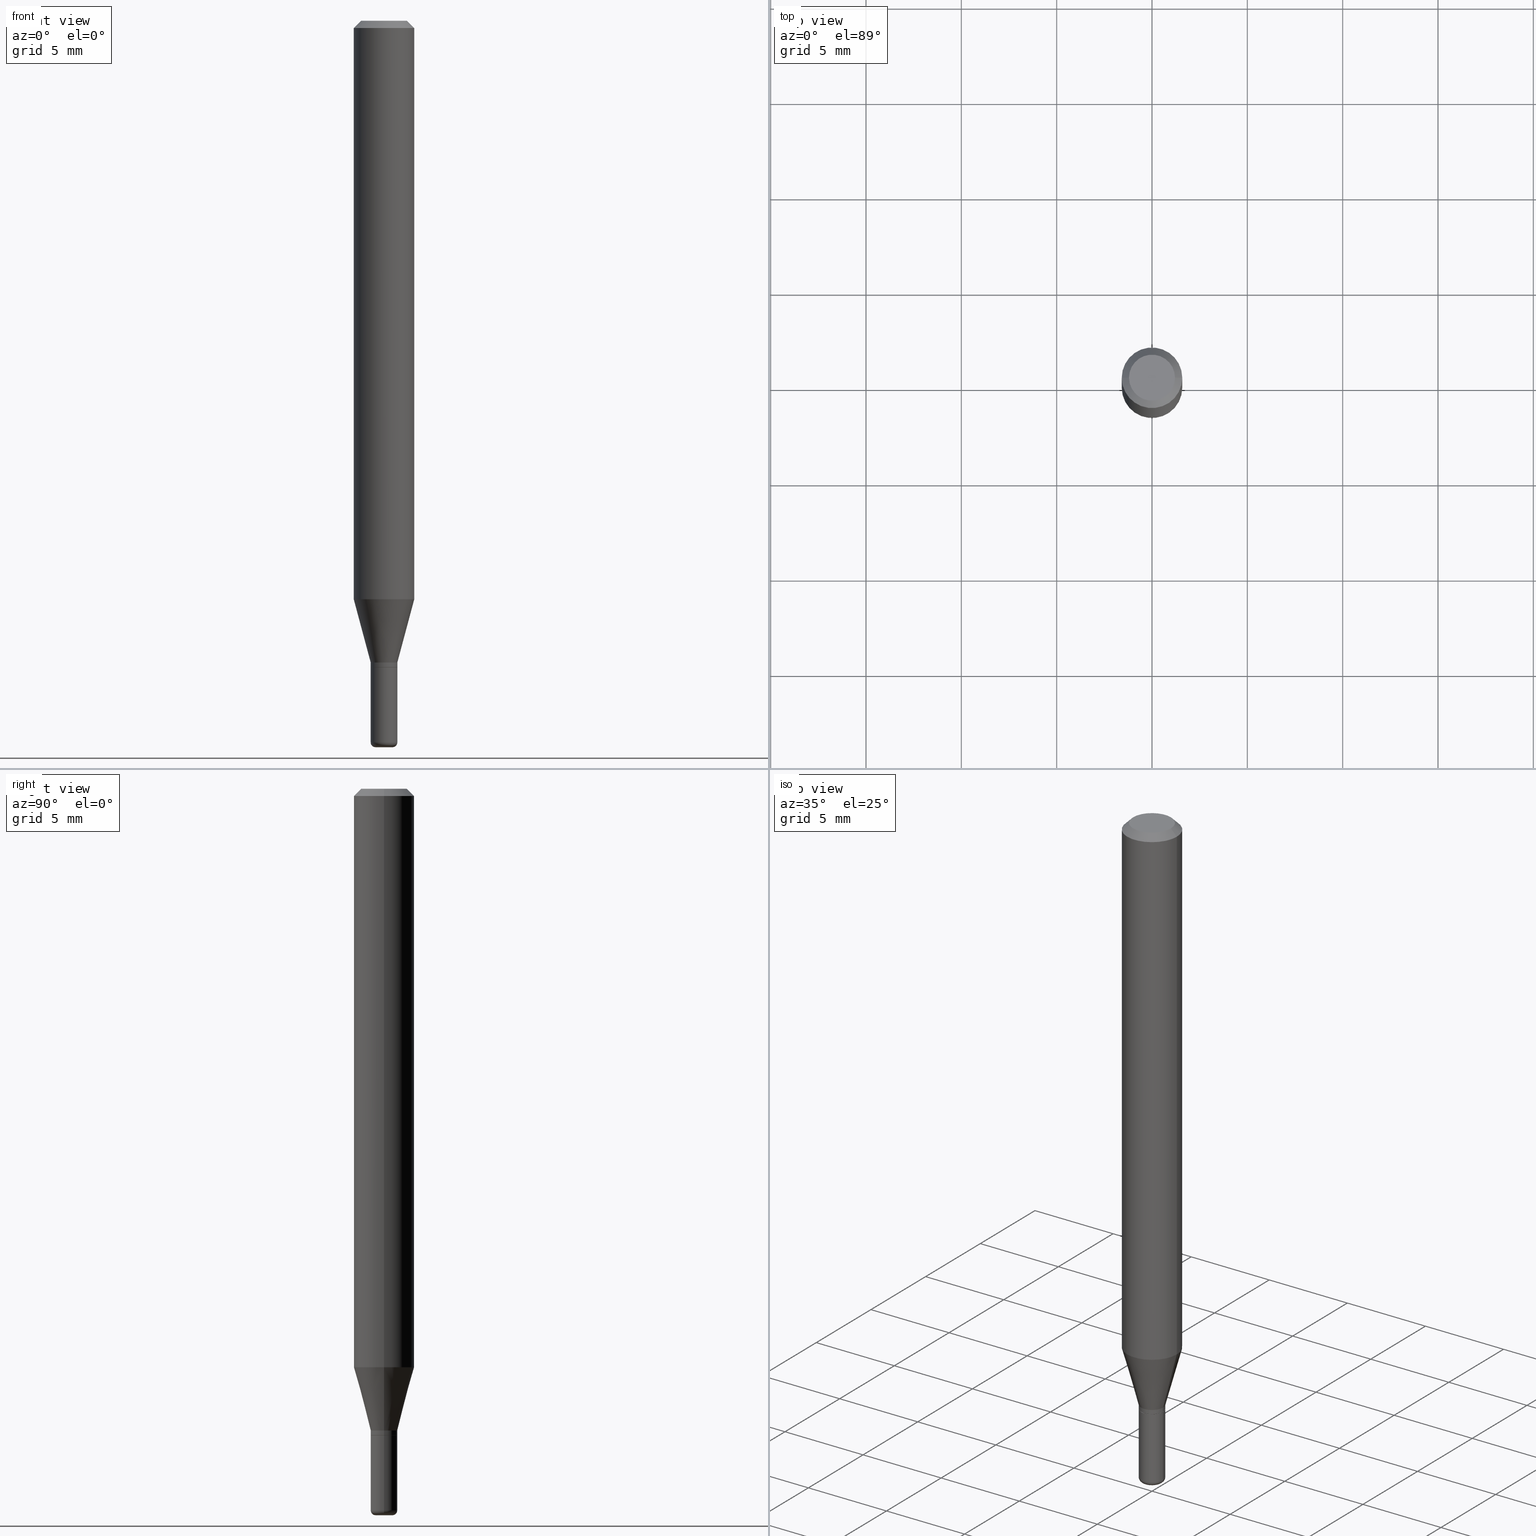
[diagram: canonical four-view strip — front | top / right | iso, engineering-drawing reading convention]
A machine part, canonical four-view strip (front | top / right | iso — engineering-drawing reading convention). The complete STEP part file that produces these views, byte-faithful:
ISO-10303-21;
HEADER;
FILE_DESCRIPTION (( 'STEP AP203' ),
    '1' );
FILE_NAME ('08671.STEP',
    '2024-02-29T20:17:09',
    ( '' ),
    ( '' ),
    'SwSTEP 2.0',
    'SolidWorks 2023',
    '' );
FILE_SCHEMA (( 'CONFIG_CONTROL_DESIGN' ));
ENDSEC;

DATA;
#1 = ORIENTED_EDGE ( 'NONE', *, *, #177, .T. ) ;
#2 = AXIS2_PLACEMENT_3D ( 'NONE', #332, #20, #141 ) ;
#3 = CONICAL_SURFACE ( 'NONE', #286, 0.02699999999999996847, 0.7853981633975507526 ) ;
#4 = DIRECTION ( 'NONE',  ( -1.000000000000000000, 6.982962677686265922E-15, -4.876176775795935793E-29 ) ) ;
#5 = APPROVAL ( #401, 'UNSPECIFIED' ) ;
#6 = DIRECTION ( 'NONE',  ( 1.000000000000000000, -6.982962677686265922E-15, 4.876176775795935793E-29 ) ) ;
#7 = LINE ( 'NONE', #88, #168 ) ;
#8 = AXIS2_PLACEMENT_3D ( 'NONE', #486, #290, #136 ) ;
#9 = EDGE_CURVE ( 'NONE', #91, #51, #457, .T. ) ;
#10 = LOCAL_TIME ( 15, 17, 9.000000000000000000, #236 ) ;
#11 = ORIENTED_EDGE ( 'NONE', *, *, #24, .T. ) ;
#12 = AXIS2_PLACEMENT_3D ( 'NONE', #255, #338, #347 ) ;
#13 = AXIS2_PLACEMENT_3D ( 'NONE', #246, #173, #320 ) ;
#14 = APPROVAL_ROLE ( '' ) ;
#15 = CARTESIAN_POINT ( 'NONE',  ( 3.643748521215853910E-29, -5.202307194876288105E-15, -1.490000000000000213 ) ) ;
#16 = ADVANCED_BREP_SHAPE_REPRESENTATION ( '08671', ( #166, #169, #13 ), #458 ) ;
#17 = EDGE_LOOP ( 'NONE', ( #243, #474, #64, #326 ) ) ;
#18 = EDGE_CURVE ( 'NONE', #402, #51, #226, .T. ) ;
#19 = PERSON_AND_ORGANIZATION_ROLE ( 'creator' ) ;
#20 = DIRECTION ( 'NONE',  ( -2.445468806185136597E-29, 3.491481338843145583E-15, 1.000000000000000000 ) ) ;
#21 = DATE_AND_TIME ( #384, #98 ) ;
#22 = EDGE_CURVE ( 'NONE', #196, #301, #233, .T. ) ;
#23 = CIRCLE ( 'NONE', #115, 0.01750000000000000167 ) ;
#24 = EDGE_CURVE ( 'NONE', #402, #276, #514, .T. ) ;
#25 = DIRECTION ( 'NONE',  ( 1.000000000000000000, -6.982962677686266711E-15, 0.000000000000000000 ) ) ;
#26 = DIRECTION ( 'NONE',  ( -2.438088387897960049E-29, 3.491481338843145188E-15, 1.000000000000000000 ) ) ;
#27 = VERTEX_POINT ( 'NONE', #421 ) ;
#28 = ORIENTED_EDGE ( 'NONE', *, *, #44, .F. ) ;
#29 = EDGE_CURVE ( 'NONE', #276, #402, #23, .T. ) ;
#30 = DIRECTION ( 'NONE',  ( 1.000000000000000000, -6.982962677686254878E-15, 0.000000000000000000 ) ) ;
#31 = AXIS2_PLACEMENT_3D ( 'NONE', #311, #364, #394 ) ;
#32 = SECURITY_CLASSIFICATION_LEVEL ( 'unclassified' ) ;
#33 = CARTESIAN_POINT ( 'NONE',  ( 0.02749999999999994463, -5.394338668512659809E-15, -1.490000000000000213 ) ) ;
#34 = ORIENTED_EDGE ( 'NONE', *, *, #191, .F. ) ;
#35 = CALENDAR_DATE ( 2024, 29, 2 ) ;
#36 = DIRECTION ( 'NONE',  ( -2.445468806185136597E-29, 3.491481338843145583E-15, 1.000000000000000000 ) ) ;
#37 = EDGE_LOOP ( 'NONE', ( #267, #70 ) ) ;
#38 = DIRECTION ( 'NONE',  ( 1.000000000000000000, -6.982962677686279332E-15, 0.000000000000000000 ) ) ;
#39 = DIRECTION ( 'NONE',  ( -2.445468806185136597E-29, 3.491481338843145583E-15, 1.000000000000000000 ) ) ;
#40 = ORIENTED_EDGE ( 'NONE', *, *, #9, .T. ) ;
#41 = PLANE ( 'NONE',  #268 ) ;
#42 = AXIS2_PLACEMENT_3D ( 'NONE', #388, #518, #204 ) ;
#43 = SECURITY_CLASSIFICATION ( '', '', #32 ) ;
#44 = EDGE_CURVE ( 'NONE', #91, #27, #112, .T. ) ;
#45 = DIRECTION ( 'NONE',  ( -2.445468806185136597E-29, 3.491481338843145583E-15, 1.000000000000000000 ) ) ;
#46 = AXIS2_PLACEMENT_3D ( 'NONE', #185, #258, #25 ) ;
#47 = CARTESIAN_POINT ( 'NONE',  ( -0.02750000000000000014, -4.736318138781917467E-15, -1.335000000000000187 ) ) ;
#48 = EDGE_LOOP ( 'NONE', ( #429, #460, #428, #106 ) ) ;
#49 = DIRECTION ( 'NONE',  ( -0.7071067811865479058, 2.468850131082261005E-15, -0.7071067811865471286 ) ) ;
#50 = ADVANCED_FACE ( 'NONE', ( #147 ), #465, .T. ) ;
#51 = VERTEX_POINT ( 'NONE', #192 ) ;
#52 = ORIENTED_EDGE ( 'NONE', *, *, #18, .F. ) ;
#53 = DIRECTION ( 'NONE',  ( 2.438088387897960049E-29, -3.491481338843145188E-15, -1.000000000000000000 ) ) ;
#54 = CIRCLE ( 'NONE', #224, 0.06250000000000000000 ) ;
#55 = AXIS2_PLACEMENT_3D ( 'NONE', #442, #400, #397 ) ;
#56 = ADVANCED_FACE ( 'NONE', ( #350 ), #145, .T. ) ;
#57 = ORIENTED_EDGE ( 'NONE', *, *, #80, .T. ) ;
#58 = LINE ( 'NONE', #234, #186 ) ;
#59 = CARTESIAN_POINT ( 'NONE',  ( -0.01750000000000000167, -5.077962216118270068E-15, -1.490000000000000213 ) ) ;
#60 = VERTEX_POINT ( 'NONE', #427 ) ;
#61 = CARTESIAN_POINT ( 'NONE',  ( -6.680649051745406845E-45, 9.538196290434862081E-31, 2.731847993664263218E-16 ) ) ;
#62 = ORIENTED_EDGE ( 'NONE', *, *, #191, .T. ) ;
#63 = AXIS2_PLACEMENT_3D ( 'NONE', #317, #132, #278 ) ;
#64 = ORIENTED_EDGE ( 'NONE', *, *, #177, .F. ) ;
#65 = VECTOR ( 'NONE', #456, 39.37007874015748854 ) ;
#66 = AXIS2_PLACEMENT_3D ( 'NONE', #15, #289, #102 ) ;
#67 = AXIS2_PLACEMENT_3D ( 'NONE', #158, #481, #275 ) ;
#68 = FACE_OUTER_BOUND ( 'NONE', #37, .T. ) ;
#69 = DIRECTION ( 'NONE',  ( -2.445468806185136597E-29, 3.491481338843145583E-15, 1.000000000000000000 ) ) ;
#70 = ORIENTED_EDGE ( 'NONE', *, *, #24, .F. ) ;
#71 = ADVANCED_FACE ( 'NONE', ( #298 ), #149, .T. ) ;
#72 = ORIENTED_EDGE ( 'NONE', *, *, #165, .T. ) ;
#73 = CARTESIAN_POINT ( 'NONE',  ( 3.668203209277632395E-31, -5.237222008264614861E-17, -0.01499999999999970281 ) ) ;
#74 = ADVANCED_FACE ( 'NONE', ( #307 ), #77, .T. ) ;
#75 = AXIS2_PLACEMENT_3D ( 'NONE', #117, #515, #120 ) ;
#76 = APPROVAL_ROLE ( '' ) ;
#77 = CYLINDRICAL_SURFACE ( 'NONE', #355, 0.02749999999999997238 ) ;
#78 = ORIENTED_EDGE ( 'NONE', *, *, #369, .F. ) ;
#79 = CARTESIAN_POINT ( 'NONE',  ( 0.06250000000000000000, -4.811533449433669144E-16, -0.01499999999999970281 ) ) ;
#80 = EDGE_CURVE ( 'NONE', #415, #60, #252, .T. ) ;
#81 = CARTESIAN_POINT ( 'NONE',  ( 0.000000000000000000, 0.000000000000000000, 0.000000000000000000 ) ) ;
#82 = ORIENTED_EDGE ( 'NONE', *, *, #517, .F. ) ;
#83 = DIRECTION ( 'NONE',  ( -1.000000000000000000, 6.982962677686266711E-15, 0.000000000000000000 ) ) ;
#84 = CARTESIAN_POINT ( 'NONE',  ( -0.06250000000000000000, -1.667171536545623209E-15, -0.01499999999999970281 ) ) ;
#85 = VECTOR ( 'NONE', #49, 39.37007874015748143 ) ;
#86 = EDGE_LOOP ( 'NONE', ( #344, #238, #279, #221 ) ) ;
#87 = CIRCLE ( 'NONE', #179, 0.009999999999999944697 ) ;
#88 = CARTESIAN_POINT ( 'NONE',  ( -0.02699999999999996847, -4.469281048700372690E-15, -1.335000000000000187 ) ) ;
#89 = PERSON_AND_ORGANIZATION_ROLE ( 'creator' ) ;
#90 = CYLINDRICAL_SURFACE ( 'NONE', #453, 0.06250000000000000000 ) ;
#91 = VERTEX_POINT ( 'NONE', #33 ) ;
#92 = DIRECTION ( 'NONE',  ( -2.445468806185136597E-29, 3.491481338843145583E-15, 1.000000000000000000 ) ) ;
#93 = ORIENTED_EDGE ( 'NONE', *, *, #490, .T. ) ;
#94 = FACE_OUTER_BOUND ( 'NONE', #327, .T. ) ;
#95 = DIRECTION ( 'NONE',  ( -2.445468806185136597E-29, 3.491481338843145583E-15, 1.000000000000000000 ) ) ;
#96 = ORIENTED_EDGE ( 'NONE', *, *, #157, .T. ) ;
#97 = ORIENTED_EDGE ( 'NONE', *, *, #363, .F. ) ;
#98 = LOCAL_TIME ( 15, 17, 9.000000000000000000, #328 ) ;
#99 = APPLICATION_CONTEXT ( 'configuration controlled 3d designs of mechanical parts and assemblies' ) ;
#100 = EDGE_CURVE ( 'NONE', #360, #315, #423, .T. ) ;
#101 = ADVANCED_FACE ( 'NONE', ( #68 ), #220, .F. ) ;
#102 = DIRECTION ( 'NONE',  ( 1.000000000000000000, -6.982962677686258033E-15, 4.883557194083110098E-29 ) ) ;
#103 = CARTESIAN_POINT ( 'NONE',  ( 0.04750000000000000749, -4.035134999187568762E-16, 2.731847993664288856E-16 ) ) ;
#104 = AXIS2_PLACEMENT_3D ( 'NONE', #372, #509, #353 ) ;
#105 = CARTESIAN_POINT ( 'NONE',  ( 0.000000000000000000, 0.000000000000000000, 0.000000000000000000 ) ) ;
#106 = ORIENTED_EDGE ( 'NONE', *, *, #398, .F. ) ;
#107 = DIRECTION ( 'NONE',  ( -2.445468806185136597E-29, 3.491481338843145583E-15, 1.000000000000000000 ) ) ;
#108 = EDGE_CURVE ( 'NONE', #315, #237, #58, .T. ) ;
#109 = DIRECTION ( 'NONE',  ( 1.000000000000000000, -6.982962677686265922E-15, 4.876176775795935232E-29 ) ) ;
#110 = CARTESIAN_POINT ( 'NONE',  ( 3.668203209277632395E-31, -5.237222008264614861E-17, -0.01499999999999970281 ) ) ;
#111 = DIRECTION ( 'NONE',  ( -2.445468806185136877E-29, 3.491481338843145188E-15, 1.000000000000000000 ) ) ;
#112 = LINE ( 'NONE', #414, #153 ) ;
#113 = EDGE_LOOP ( 'NONE', ( #133, #154, #393, #512 ) ) ;
#114 = AXIS2_PLACEMENT_3D ( 'NONE', #309, #470, #38 ) ;
#115 = AXIS2_PLACEMENT_3D ( 'NONE', #376, #36, #382 ) ;
#116 = DIRECTION ( 'NONE',  ( -2.445468806185136877E-29, 3.491481338843145188E-15, 1.000000000000000000 ) ) ;
#117 = CARTESIAN_POINT ( 'NONE',  ( -6.680649051745406845E-45, 9.538196290434862081E-31, 2.731847993664263218E-16 ) ) ;
#118 = DIRECTION ( 'NONE',  ( -2.445468806185136597E-29, 3.491481338843145583E-15, 1.000000000000000000 ) ) ;
#119 = VERTEX_POINT ( 'NONE', #473 ) ;
#120 = DIRECTION ( 'NONE',  ( 1.000000000000000000, -6.982962677686266711E-15, 4.852736867747365086E-29 ) ) ;
#121 = CARTESIAN_POINT ( 'NONE',  ( 3.263478121854064959E-29, -4.659381846686178407E-15, -1.334500000000000242 ) ) ;
#122 = DIRECTION ( 'NONE',  ( 1.000000000000000000, -6.982962677686258033E-15, 4.883557194083110098E-29 ) ) ;
#123 = DIRECTION ( 'NONE',  ( 1.000000000000000000, -6.982962677686251722E-15, 0.000000000000000000 ) ) ;
#124 = PRODUCT_RELATED_PRODUCT_CATEGORY ( 'detail', '', ( #497 ) ) ;
#125 = AXIS2_PLACEMENT_3D ( 'NONE', #261, #118, #413 ) ;
#126 = ORGANIZATION ( 'UNSPECIFIED', 'UNSPECIFIED', '' ) ;
#127 = DIRECTION ( 'NONE',  ( -2.445468806185136597E-29, 3.491481338843145583E-15, 1.000000000000000000 ) ) ;
#128 = ORIENTED_EDGE ( 'NONE', *, *, #100, .F. ) ;
#129 = FACE_OUTER_BOUND ( 'NONE', #405, .T. ) ;
#130 = ORIENTED_EDGE ( 'NONE', *, *, #202, .F. ) ;
#131 = DIRECTION ( 'NONE',  ( 1.000000000000000000, -6.982962677686266711E-15, 4.876176775795935793E-29 ) ) ;
#132 = DIRECTION ( 'NONE',  ( 2.438088387897960049E-29, -3.491481338843145188E-15, -1.000000000000000000 ) ) ;
#133 = ORIENTED_EDGE ( 'NONE', *, *, #80, .F. ) ;
#134 = APPROVAL_PERSON_ORGANIZATION ( #171, #454, #507 ) ;
#135 = AXIS2_PLACEMENT_3D ( 'NONE', #498, #502, #30 ) ;
#136 = DIRECTION ( 'NONE',  ( 1.000000000000000000, -6.982962677686254878E-15, 0.000000000000000000 ) ) ;
#137 = EDGE_LOOP ( 'NONE', ( #336, #72, #358, #241 ) ) ;
#138 = EDGE_CURVE ( 'NONE', #272, #119, #435, .T. ) ;
#139 = ADVANCED_FACE ( 'NONE', ( #437 ), #90, .T. ) ;
#140 = AXIS2_PLACEMENT_3D ( 'NONE', #444, #95, #161 ) ;
#141 = DIRECTION ( 'NONE',  ( 1.000000000000000000, -6.982962677686270655E-15, 0.000000000000000000 ) ) ;
#142 = CLOSED_SHELL ( 'NONE', ( #189, #425, #381, #74, #431, #101 ) ) ;
#143 = DIMENSIONAL_EXPONENTS ( 1.000000000000000000, 0.000000000000000000, 0.000000000000000000, 0.000000000000000000, 0.000000000000000000, 0.000000000000000000, 0.000000000000000000 ) ;
#144 = DIRECTION ( 'NONE',  ( 1.000000000000000000, -6.982962677686265922E-15, 4.876176775795935793E-29 ) ) ;
#145 = CYLINDRICAL_SURFACE ( 'NONE', #12, 0.06250000000000000000 ) ;
#146 = PERSON_AND_ORGANIZATION ( #312, #126 ) ;
#147 = FACE_OUTER_BOUND ( 'NONE', #227, .T. ) ;
#148 = PERSON_AND_ORGANIZATION ( #312, #126 ) ;
#149 = CYLINDRICAL_SURFACE ( 'NONE', #396, 0.02749999999999996197 ) ;
#150 = ORIENTED_EDGE ( 'NONE', *, *, #398, .T. ) ;
#151 = CC_DESIGN_APPROVAL ( #454, ( #304 ) ) ;
#152 = APPROVAL_DATE_TIME ( #300, #506 ) ;
#153 = VECTOR ( 'NONE', #193, 39.37007874015748143 ) ;
#154 = ORIENTED_EDGE ( 'NONE', *, *, #369, .T. ) ;
#155 = DIRECTION ( 'NONE',  ( -6.982962677686266711E-15, -1.000000000000000000, 3.491481338843145583E-15 ) ) ;
#156 = FACE_OUTER_BOUND ( 'NONE', #282, .T. ) ;
#157 = EDGE_CURVE ( 'NONE', #60, #119, #443, .T. ) ;
#158 = CARTESIAN_POINT ( 'NONE',  ( 2.920814684040035017E-29, -4.170149272708725360E-15, -1.194378221735089340 ) ) ;
#159 =( LENGTH_UNIT ( ) NAMED_UNIT ( * ) SI_UNIT ( $, .METRE. ) );
#160 = VECTOR ( 'NONE', #479, 39.37007874015748143 ) ;
#161 = DIRECTION ( 'NONE',  ( 1.000000000000000000, -6.982962677686254878E-15, 0.000000000000000000 ) ) ;
#162 = PERSON_AND_ORGANIZATION ( #312, #126 ) ;
#163 = DIRECTION ( 'NONE',  ( 0.7071067811866199593, -2.468850131083015945E-15, 0.7071067811864750752 ) ) ;
#164 = PLANE ( 'NONE',  #63 ) ;
#165 = EDGE_CURVE ( 'NONE', #60, #183, #468, .T. ) ;
#166 = MANIFOLD_SOLID_BREP ( 'Body-Move/Copy2[1]', #142 ) ;
#167 = DIRECTION ( 'NONE',  ( -2.445468806185136597E-29, 3.491481338843145583E-15, 1.000000000000000000 ) ) ;
#168 = VECTOR ( 'NONE', #476, 39.37007874015748143 ) ;
#169 = MANIFOLD_SOLID_BREP ( 'Body-Move/Copy2[2]', #259 ) ;
#170 = LINE ( 'NONE', #239, #491 ) ;
#171 = PERSON_AND_ORGANIZATION ( #312, #126 ) ;
#172 = ORIENTED_EDGE ( 'NONE', *, *, #242, .F. ) ;
#173 = DIRECTION ( 'NONE',  ( 0.000000000000000000, 0.000000000000000000, 1.000000000000000000 ) ) ;
#174 = ORIENTED_EDGE ( 'NONE', *, *, #9, .F. ) ;
#175 = CC_DESIGN_PERSON_AND_ORGANIZATION_ASSIGNMENT ( #162, #19, ( #391 ) ) ;
#176 = DIRECTION ( 'NONE',  ( -2.445468806185136597E-29, 3.491481338843145583E-15, 1.000000000000000000 ) ) ;
#177 = EDGE_CURVE ( 'NONE', #464, #263, #250, .T. ) ;
#178 = ADVANCED_FACE ( 'NONE', ( #219 ), #3, .T. ) ;
#179 = AXIS2_PLACEMENT_3D ( 'NONE', #430, #155, #433 ) ;
#180 = FACE_OUTER_BOUND ( 'NONE', #511, .T. ) ;
#181 = PERSON_AND_ORGANIZATION ( #312, #126 ) ;
#182 = EDGE_LOOP ( 'NONE', ( #62, #93 ) ) ;
#183 = VERTEX_POINT ( 'NONE', #455 ) ;
#184 = CONICAL_SURFACE ( 'NONE', #434, 0.06250000000000000000, 0.7853981633974488341 ) ;
#185 = CARTESIAN_POINT ( 'NONE',  ( 3.668203209277632395E-31, -5.237222008264614861E-17, -0.01499999999999970281 ) ) ;
#186 = VECTOR ( 'NONE', #163, 39.37007874015748143 ) ;
#187 = DATE_AND_TIME ( #35, #10 ) ;
#188 = CC_DESIGN_APPROVAL ( #5, ( #391 ) ) ;
#189 = ADVANCED_FACE ( 'NONE', ( #416 ), #245, .T. ) ;
#190 = COORDINATED_UNIVERSAL_TIME_OFFSET ( 5, 0, .BEHIND. ) ;
#191 = EDGE_CURVE ( 'NONE', #27, #351, #337, .T. ) ;
#192 = CARTESIAN_POINT ( 'NONE',  ( -0.02749999999999994463, -4.736318138781917467E-15, -1.490000000000000213 ) ) ;
#193 = DIRECTION ( 'NONE',  ( -2.445468806185136877E-29, 3.491481338843145188E-15, 1.000000000000000000 ) ) ;
#194 = ORIENTED_EDGE ( 'NONE', *, *, #291, .F. ) ;
#195 = FACE_OUTER_BOUND ( 'NONE', #417, .T. ) ;
#196 = VERTEX_POINT ( 'NONE', #103 ) ;
#197 = LINE ( 'NONE', #378, #85 ) ;
#198 = ADVANCED_FACE ( 'NONE', ( #249 ), #478, .T. ) ;
#199 = APPROVAL_STATUS ( 'not_yet_approved' ) ;
#200 = ORIENTED_EDGE ( 'NONE', *, *, #490, .F. ) ;
#201 = CARTESIAN_POINT ( 'NONE',  ( 3.668203209277632395E-31, -5.237222008264614861E-17, -0.01499999999999970281 ) ) ;
#202 = EDGE_CURVE ( 'NONE', #51, #91, #406, .T. ) ;
#203 = CARTESIAN_POINT ( 'NONE',  ( 3.316907271900976589E-16, 0.04750000000000000749, -2.925296391183627249E-17 ) ) ;
#204 = DIRECTION ( 'NONE',  ( 1.000000000000000000, -6.982962677686251722E-15, 0.000000000000000000 ) ) ;
#205 = EDGE_CURVE ( 'NONE', #196, #464, #461, .T. ) ;
#206 = AXIS2_PLACEMENT_3D ( 'NONE', #61, #167, #283 ) ;
#207 = CARTESIAN_POINT ( 'NONE',  ( 3.264700856257157760E-29, -4.661127587355599122E-15, -1.335000000000000187 ) ) ;
#208 = EDGE_LOOP ( 'NONE', ( #97, #487, #223, #78 ) ) ;
#209 = EDGE_CURVE ( 'NONE', #237, #183, #379, .T. ) ;
#210 = UNCERTAINTY_MEASURE_WITH_UNIT (LENGTH_MEASURE( 1.000000000000000082E-05 ), #318, 'distance_accuracy_value', 'NONE');
#211 = DIRECTION ( 'NONE',  ( 7.105427357601001859E-15, 1.000000000000000000, -3.491481338843145583E-15 ) ) ;
#212 = CARTESIAN_POINT ( 'NONE',  ( 3.668203209277704895E-29, -5.237222008264718177E-15, -1.500000000000000222 ) ) ;
#213 = CONICAL_SURFACE ( 'NONE', #8, 0.02749999999999995851, 0.2617993877991494078 ) ;
#214 = LOCAL_TIME ( 15, 17, 9.000000000000000000, #323 ) ;
#215 = EDGE_CURVE ( 'NONE', #272, #464, #254, .T. ) ;
#216 = EDGE_LOOP ( 'NONE', ( #432, #459, #408, #200 ) ) ;
#217 = DIRECTION ( 'NONE',  ( 1.000000000000000000, -6.982962677686266711E-15, 0.000000000000000000 ) ) ;
#218 = ADVANCED_FACE ( 'NONE', ( #262 ), #420, .T. ) ;
#219 = FACE_OUTER_BOUND ( 'NONE', #86, .T. ) ;
#220 = PLANE ( 'NONE',  #492 ) ;
#221 = ORIENTED_EDGE ( 'NONE', *, *, #108, .F. ) ;
#222 = DIRECTION ( 'NONE',  ( -2.445468806185136597E-29, 3.491481338843145583E-15, 1.000000000000000000 ) ) ;
#223 = ORIENTED_EDGE ( 'NONE', *, *, #108, .T. ) ;
#224 = AXIS2_PLACEMENT_3D ( 'NONE', #110, #407, #217 ) ;
#225 = CC_DESIGN_DATE_AND_TIME_ASSIGNMENT ( #462, #426, ( #43 ) ) ;
#226 = CIRCLE ( 'NONE', #331, 0.009999999999999944697 ) ;
#227 = EDGE_LOOP ( 'NONE', ( #438, #57, #172, #389 ) ) ;
#228 = CARTESIAN_POINT ( 'NONE',  ( 0.000000000000000000, 0.000000000000000000, 0.000000000000000000 ) ) ;
#229 = EDGE_LOOP ( 'NONE', ( #482, #256, #449, #150 ) ) ;
#230 = ADVANCED_FACE ( 'NONE', ( #325 ), #213, .T. ) ;
#231 = AXIS2_PLACEMENT_3D ( 'NONE', #121, #92, #123 ) ;
#232 = LOCAL_TIME ( 15, 17, 9.000000000000000000, #190 ) ;
#233 = CIRCLE ( 'NONE', #206, 0.04750000000000000749 ) ;
#234 = CARTESIAN_POINT ( 'NONE',  ( 0.02699999999999996847, -4.849667579653128607E-15, -1.335000000000000187 ) ) ;
#235 = ORIENTED_EDGE ( 'NONE', *, *, #488, .F. ) ;
#236 = COORDINATED_UNIVERSAL_TIME_OFFSET ( 5, 0, .BEHIND. ) ;
#237 = VERTEX_POINT ( 'NONE', #247 ) ;
#238 = ORIENTED_EDGE ( 'NONE', *, *, #363, .T. ) ;
#239 = CARTESIAN_POINT ( 'NONE',  ( 0.02749999999999995851, -4.818244247603540754E-15, -1.325000000000000178 ) ) ;
#240 = DIRECTION ( 'NONE',  ( -2.445468806185136597E-29, 3.491481338843145583E-15, 1.000000000000000000 ) ) ;
#241 = ORIENTED_EDGE ( 'NONE', *, *, #409, .F. ) ;
#242 = EDGE_CURVE ( 'NONE', #183, #60, #387, .T. ) ;
#243 = ORIENTED_EDGE ( 'NONE', *, *, #138, .T. ) ;
#244 = AXIS2_PLACEMENT_3D ( 'NONE', #73, #516, #83 ) ;
#245 = TOROIDAL_SURFACE ( 'NONE', #66, 0.01750000000000000167, 0.009999999999999946432 ) ;
#246 = CARTESIAN_POINT ( 'NONE',  ( 0.000000000000000000, 0.000000000000000000, 0.000000000000000000 ) ) ;
#247 = CARTESIAN_POINT ( 'NONE',  ( 0.02749999999999997238, -4.851413320322550900E-15, -1.334500000000000242 ) ) ;
#248 = AXIS2_PLACEMENT_3D ( 'NONE', #352, #508, #122 ) ;
#249 = FACE_OUTER_BOUND ( 'NONE', #208, .T. ) ;
#250 = CIRCLE ( 'NONE', #46, 0.06250000000000000000 ) ;
#251 = ORIENTED_EDGE ( 'NONE', *, *, #517, .T. ) ;
#252 = LINE ( 'NONE', #469, #341 ) ;
#253 = APPLICATION_CONTEXT ( 'configuration controlled 3d designs of mechanical parts and assemblies' ) ;
#254 = LINE ( 'NONE', #467, #436 ) ;
#255 = CARTESIAN_POINT ( 'NONE',  ( 0.000000000000000000, 0.000000000000000000, 0.000000000000000000 ) ) ;
#256 = ORIENTED_EDGE ( 'NONE', *, *, #513, .F. ) ;
#257 = AXIS2_PLACEMENT_3D ( 'NONE', #203, #53, #4 ) ;
#258 = DIRECTION ( 'NONE',  ( -2.445468806185136597E-29, 3.491481338843145583E-15, 1.000000000000000000 ) ) ;
#259 = CLOSED_SHELL ( 'NONE', ( #50, #178, #218, #56, #321, #230, #139, #499, #370, #314, #198, #71 ) ) ;
#260 = PERSON_AND_ORGANIZATION_ROLE ( 'design_supplier' ) ;
#261 = CARTESIAN_POINT ( 'NONE',  ( 3.264700856257157760E-29, -4.661127587355599122E-15, -1.335000000000000187 ) ) ;
#262 = FACE_OUTER_BOUND ( 'NONE', #500, .T. ) ;
#263 = VERTEX_POINT ( 'NONE', #84 ) ;
#264 = FACE_OUTER_BOUND ( 'NONE', #229, .T. ) ;
#265 = DIRECTION ( 'NONE',  ( -2.445468806185136597E-29, 3.491481338843145583E-15, 1.000000000000000000 ) ) ;
#266 = FACE_OUTER_BOUND ( 'NONE', #182, .T. ) ;
#267 = ORIENTED_EDGE ( 'NONE', *, *, #29, .F. ) ;
#268 = AXIS2_PLACEMENT_3D ( 'NONE', #277, #385, #484 ) ;
#269 = PLANE ( 'NONE',  #257 ) ;
#270 = PERSON_AND_ORGANIZATION ( #312, #126 ) ;
#271 = CIRCLE ( 'NONE', #42, 0.02749999999999997238 ) ;
#272 = VERTEX_POINT ( 'NONE', #354 ) ;
#273 = EDGE_CURVE ( 'NONE', #51, #351, #359, .T. ) ;
#274 = CARTESIAN_POINT ( 'NONE',  ( 0.02699999999999996847, -4.849667579653128607E-15, -1.335000000000000187 ) ) ;
#275 = DIRECTION ( 'NONE',  ( 1.000000000000000000, -6.982962677686270655E-15, 0.000000000000000000 ) ) ;
#276 = VERTEX_POINT ( 'NONE', #316 ) ;
#277 = CARTESIAN_POINT ( 'NONE',  ( 3.264700856257157760E-29, -4.661127587355599122E-15, -1.335000000000000187 ) ) ;
#278 = DIRECTION ( 'NONE',  ( -1.000000000000000000, 6.982962677686265922E-15, -4.876176775795935793E-29 ) ) ;
#279 = ORIENTED_EDGE ( 'NONE', *, *, #303, .F. ) ;
#280 = ORIENTED_EDGE ( 'NONE', *, *, #392, .F. ) ;
#281 = MECHANICAL_CONTEXT ( 'NONE', #253, 'mechanical' ) ;
#282 = EDGE_LOOP ( 'NONE', ( #383, #96, #374, #280 ) ) ;
#283 = DIRECTION ( 'NONE',  ( 1.000000000000000000, -6.982962677686266711E-15, 4.852736867747365086E-29 ) ) ;
#284 = CIRCLE ( 'NONE', #75, 0.04750000000000000749 ) ;
#285 =( NAMED_UNIT ( * ) SI_UNIT ( $, .STERADIAN. ) SOLID_ANGLE_UNIT ( ) );
#286 = AXIS2_PLACEMENT_3D ( 'NONE', #451, #107, #496 ) ;
#287 = EDGE_CURVE ( 'NONE', #119, #263, #310, .T. ) ;
#288 = CARTESIAN_POINT ( 'NONE',  ( -0.02749999999999997238, -4.463982594352150288E-15, -1.334500000000000242 ) ) ;
#289 = DIRECTION ( 'NONE',  ( -2.445468806185136597E-29, 3.491481338843145583E-15, 1.000000000000000000 ) ) ;
#290 = DIRECTION ( 'NONE',  ( -2.445468806185136597E-29, 3.491481338843145583E-15, 1.000000000000000000 ) ) ;
#291 = EDGE_CURVE ( 'NONE', #315, #360, #319, .T. ) ;
#292 = APPLICATION_PROTOCOL_DEFINITION ( 'international standard', 'config_control_design', 1994, #99 ) ;
#293 = APPROVAL_PERSON_ORGANIZATION ( #448, #5, #14 ) ;
#294 = CC_DESIGN_PERSON_AND_ORGANIZATION_ASSIGNMENT ( #146, #386, ( #43 ) ) ;
#295 = CARTESIAN_POINT ( 'NONE',  ( 0.000000000000000000, 0.000000000000000000, 0.000000000000000000 ) ) ;
#296 = DIRECTION ( 'NONE',  ( 1.000000000000000000, -6.982962677686258822E-15, 0.000000000000000000 ) ) ;
#297 = CALENDAR_DATE ( 2024, 29, 2 ) ;
#298 = FACE_OUTER_BOUND ( 'NONE', #113, .T. ) ;
#299 = CARTESIAN_POINT ( 'NONE',  ( 3.643748521215853910E-29, -5.202307194876288105E-15, -1.490000000000000213 ) ) ;
#300 = DATE_AND_TIME ( #510, #485 ) ;
#301 = VERTEX_POINT ( 'NONE', #441 ) ;
#302 = CARTESIAN_POINT ( 'NONE',  ( 0.02749999999999996197, -1.920314736363720486E-16, 1.340948613343880486E-30 ) ) ;
#303 = EDGE_CURVE ( 'NONE', #237, #415, #271, .T. ) ;
#304 = PRODUCT_DEFINITION_FORMATION_WITH_SPECIFIED_SOURCE ( 'ANY', '', #497, .NOT_KNOWN. ) ;
#305 = PERSON_AND_ORGANIZATION ( #312, #126 ) ;
#306 = APPROVAL_DATE_TIME ( #450, #5 ) ;
#307 = FACE_OUTER_BOUND ( 'NONE', #216, .T. ) ;
#308 = ORIENTED_EDGE ( 'NONE', *, *, #22, .F. ) ;
#309 = CARTESIAN_POINT ( 'NONE',  ( 3.264700856257157760E-29, -4.661127587355599122E-15, -1.335000000000000187 ) ) ;
#310 = LINE ( 'NONE', #362, #160 ) ;
#311 = CARTESIAN_POINT ( 'NONE',  ( 3.240246168195306775E-29, -4.626212773967169051E-15, -1.325000000000000178 ) ) ;
#312 = PERSON ( 'UNSPECIFIED', 'UNSPECIFIED', 'UNSPECIFIED', ('UNSPECIFIED'), ('UNSPECIFIED'), ('UNSPECIFIED') ) ;
#313 = VECTOR ( 'NONE', #348, 39.37007874015748143 ) ;
#314 = ADVANCED_FACE ( 'NONE', ( #129 ), #41, .F. ) ;
#315 = VERTEX_POINT ( 'NONE', #274 ) ;
#316 = CARTESIAN_POINT ( 'NONE',  ( 0.01750000000000000167, -5.359423855124228160E-15, -1.500000000000000222 ) ) ;
#317 = CARTESIAN_POINT ( 'NONE',  ( 1.920314736364049589E-16, 0.02749999999999534067, -1.335000000000000187 ) ) ;
#318 =( CONVERSION_BASED_UNIT ( 'INCH', #399 ) LENGTH_UNIT ( ) NAMED_UNIT ( #143 ) );
#319 = CIRCLE ( 'NONE', #452, 0.02699999999999996847 ) ;
#320 = DIRECTION ( 'NONE',  ( 1.000000000000000000, 0.000000000000000000, 0.000000000000000000 ) ) ;
#321 = ADVANCED_FACE ( 'NONE', ( #156 ), #361, .T. ) ;
#322 = ORIENTED_EDGE ( 'NONE', *, *, #22, .T. ) ;
#323 = COORDINATED_UNIVERSAL_TIME_OFFSET ( 5, 0, .BEHIND. ) ;
#324 = CARTESIAN_POINT ( 'NONE',  ( 3.264700856257157760E-29, -4.661127587355599122E-15, -1.335000000000000187 ) ) ;
#325 = FACE_OUTER_BOUND ( 'NONE', #137, .T. ) ;
#326 = ORIENTED_EDGE ( 'NONE', *, *, #215, .F. ) ;
#327 = EDGE_LOOP ( 'NONE', ( #446, #322 ) ) ;
#328 = COORDINATED_UNIVERSAL_TIME_OFFSET ( 5, 0, .BEHIND. ) ;
#329 = CIRCLE ( 'NONE', #2, 0.06250000000000000000 ) ;
#330 = CC_DESIGN_PERSON_AND_ORGANIZATION_ASSIGNMENT ( #270, #89, ( #304 ) ) ;
#331 = AXIS2_PLACEMENT_3D ( 'NONE', #59, #211, #366 ) ;
#332 = CARTESIAN_POINT ( 'NONE',  ( 2.920814684040035017E-29, -4.170149272708725360E-15, -1.194378221735089340 ) ) ;
#333 = PERSON_AND_ORGANIZATION_ROLE ( 'design_owner' ) ;
#334 = DIRECTION ( 'NONE',  ( 1.000000000000000000, -6.982962677686279332E-15, 0.000000000000000000 ) ) ;
#335 = CARTESIAN_POINT ( 'NONE',  ( 0.000000000000000000, 0.000000000000000000, 0.000000000000000000 ) ) ;
#336 = ORIENTED_EDGE ( 'NONE', *, *, #157, .F. ) ;
#337 = CIRCLE ( 'NONE', #342, 0.02750000000000000014 ) ;
#338 = DIRECTION ( 'NONE',  ( -2.445468806185136597E-29, 3.491481338843145583E-15, 1.000000000000000000 ) ) ;
#339 = CC_DESIGN_APPROVAL ( #506, ( #43 ) ) ;
#340 = ORIENTED_EDGE ( 'NONE', *, *, #205, .T. ) ;
#341 = VECTOR ( 'NONE', #116, 39.37007874015748143 ) ;
#342 = AXIS2_PLACEMENT_3D ( 'NONE', #324, #176, #334 ) ;
#343 = DIRECTION ( 'NONE',  ( -2.445468806185136597E-29, 3.491481338843145583E-15, 1.000000000000000000 ) ) ;
#344 = ORIENTED_EDGE ( 'NONE', *, *, #291, .T. ) ;
#345 = DIRECTION ( 'NONE',  ( 1.000000000000000000, -6.982962677686265922E-15, 4.876176775795935232E-29 ) ) ;
#346 = COORDINATED_UNIVERSAL_TIME_OFFSET ( 5, 0, .BEHIND. ) ;
#347 = DIRECTION ( 'NONE',  ( 1.000000000000000000, -6.982962677686266711E-15, 4.876176775795935793E-29 ) ) ;
#348 = DIRECTION ( 'NONE',  ( 0.7071067811865479058, -7.319954787623257623E-15, -0.7071067811865471286 ) ) ;
#349 = SHAPE_DEFINITION_REPRESENTATION ( #411, #16 ) ;
#350 = FACE_OUTER_BOUND ( 'NONE', #17, .T. ) ;
#351 = VERTEX_POINT ( 'NONE', #47 ) ;
#352 = CARTESIAN_POINT ( 'NONE',  ( 3.643748521215853910E-29, -5.202307194876288105E-15, -1.490000000000000213 ) ) ;
#353 = DIRECTION ( 'NONE',  ( 1.000000000000000000, -6.982962677686269077E-15, 0.000000000000000000 ) ) ;
#354 = CARTESIAN_POINT ( 'NONE',  ( 0.06250000000000000000, -4.606584440064116240E-15, -1.194378221735089340 ) ) ;
#355 = AXIS2_PLACEMENT_3D ( 'NONE', #295, #222, #109 ) ;
#356 = DIRECTION ( 'NONE',  ( 2.445468806185136597E-29, -3.491481338843145583E-15, -1.000000000000000000 ) ) ;
#357 = CARTESIAN_POINT ( 'NONE',  ( -0.02749999999999997238, 1.953992523340273549E-16, -1.352707149820097605E-30 ) ) ;
#358 = ORIENTED_EDGE ( 'NONE', *, *, #392, .T. ) ;
#359 = LINE ( 'NONE', #357, #373 ) ;
#360 = VERTEX_POINT ( 'NONE', #472 ) ;
#361 = CONICAL_SURFACE ( 'NONE', #31, 0.02749999999999995851, 0.2617993877991494078 ) ;
#362 = CARTESIAN_POINT ( 'NONE',  ( -0.06250000000000000000, 4.440892098500626162E-16, -3.074334431409316114E-30 ) ) ;
#363 = EDGE_CURVE ( 'NONE', #360, #415, #7, .T. ) ;
#364 = DIRECTION ( 'NONE',  ( -2.445468806185136597E-29, 3.491481338843145583E-15, 1.000000000000000000 ) ) ;
#365 = CARTESIAN_POINT ( 'NONE',  ( -0.02749999999999995851, -4.430813521633141720E-15, -1.325000000000000178 ) ) ;
#366 = DIRECTION ( 'NONE',  ( -1.000000000000000000, 7.105427357600964782E-15, 0.000000000000000000 ) ) ;
#367 = AXIS2_PLACEMENT_3D ( 'NONE', #228, #45, #345 ) ;
#368 = TOROIDAL_SURFACE ( 'NONE', #248, 0.01750000000000000167, 0.009999999999999946432 ) ;
#369 = EDGE_CURVE ( 'NONE', #415, #237, #503, .T. ) ;
#370 = ADVANCED_FACE ( 'NONE', ( #94 ), #269, .F. ) ;
#371 = CARTESIAN_POINT ( 'NONE',  ( 3.582686580359766038E-29, -5.359686688179453325E-15, -1.500000000000000222 ) ) ;
#372 = CARTESIAN_POINT ( 'NONE',  ( 3.264700856257157760E-29, -4.661127587355599122E-15, -1.335000000000000187 ) ) ;
#373 = VECTOR ( 'NONE', #439, 39.37007874015748143 ) ;
#374 = ORIENTED_EDGE ( 'NONE', *, *, #138, .F. ) ;
#375 = AXIS2_PLACEMENT_3D ( 'NONE', #212, #39, #504 ) ;
#376 = CARTESIAN_POINT ( 'NONE',  ( 3.668203209277704895E-29, -5.237222008264718177E-15, -1.500000000000000222 ) ) ;
#377 = EDGE_LOOP ( 'NONE', ( #477, #422, #174, #82 ) ) ;
#378 = CARTESIAN_POINT ( 'NONE',  ( -0.06250000000000000000, 3.840629472727455270E-16, -0.01499999999999970281 ) ) ;
#379 = LINE ( 'NONE', #302, #505 ) ;
#380 = APPROVAL_DATE_TIME ( #187, #454 ) ;
#381 = ADVANCED_FACE ( 'NONE', ( #266 ), #164, .F. ) ;
#382 = DIRECTION ( 'NONE',  ( 1.000000000000000000, -6.982962677686248567E-15, 0.000000000000000000 ) ) ;
#383 = ORIENTED_EDGE ( 'NONE', *, *, #242, .T. ) ;
#384 = CALENDAR_DATE ( 2024, 29, 2 ) ;
#385 = DIRECTION ( 'NONE',  ( -2.438088387897960049E-29, 3.491481338843145188E-15, 1.000000000000000000 ) ) ;
#386 = PERSON_AND_ORGANIZATION_ROLE ( 'classification_officer' ) ;
#387 = CIRCLE ( 'NONE', #140, 0.02749999999999995851 ) ;
#388 = CARTESIAN_POINT ( 'NONE',  ( 3.263478121854064959E-29, -4.659381846686178407E-15, -1.334500000000000242 ) ) ;
#389 = ORIENTED_EDGE ( 'NONE', *, *, #209, .F. ) ;
#390 = CARTESIAN_POINT ( 'NONE',  ( 0.06250000000000000000, -4.888073874380378612E-16, -0.01499999999999970281 ) ) ;
#391 = PRODUCT_DEFINITION ( 'UNKNOWN', '', #304, #410 ) ;
#392 = EDGE_CURVE ( 'NONE', #183, #272, #170, .T. ) ;
#393 = ORIENTED_EDGE ( 'NONE', *, *, #209, .T. ) ;
#394 = DIRECTION ( 'NONE',  ( 1.000000000000000000, -6.982962677686254878E-15, 0.000000000000000000 ) ) ;
#395 = CC_DESIGN_PERSON_AND_ORGANIZATION_ASSIGNMENT ( #148, #260, ( #304 ) ) ;
#396 = AXIS2_PLACEMENT_3D ( 'NONE', #105, #69, #463 ) ;
#397 = DIRECTION ( 'NONE',  ( 1.000000000000000000, -6.982962677686258822E-15, 0.000000000000000000 ) ) ;
#398 = EDGE_CURVE ( 'NONE', #263, #464, #54, .T. ) ;
#399 = LENGTH_MEASURE_WITH_UNIT ( LENGTH_MEASURE( 0.02539999999999999897 ), #159 );
#400 = DIRECTION ( 'NONE',  ( -2.445468806185136597E-29, 3.491481338843145583E-15, 1.000000000000000000 ) ) ;
#401 = APPROVAL_STATUS ( 'not_yet_approved' ) ;
#402 = VERTEX_POINT ( 'NONE', #501 ) ;
#403 = AXIS2_PLACEMENT_3D ( 'NONE', #299, #265, #296 ) ;
#404 = APPROVAL_PERSON_ORGANIZATION ( #305, #506, #76 ) ;
#405 = EDGE_LOOP ( 'NONE', ( #194, #128 ) ) ;
#406 = CIRCLE ( 'NONE', #403, 0.02749999999999994463 ) ;
#407 = DIRECTION ( 'NONE',  ( -2.445468806185136597E-29, 3.491481338843145583E-15, 1.000000000000000000 ) ) ;
#408 = ORIENTED_EDGE ( 'NONE', *, *, #44, .T. ) ;
#409 = EDGE_CURVE ( 'NONE', #119, #272, #329, .T. ) ;
#410 = DESIGN_CONTEXT ( 'detailed design', #99, 'design' ) ;
#411 = PRODUCT_DEFINITION_SHAPE ( 'NONE', 'NONE',  #391 ) ;
#412 = CC_DESIGN_SECURITY_CLASSIFICATION ( #43, ( #304 ) ) ;
#413 = DIRECTION ( 'NONE',  ( 1.000000000000000000, -6.982962677686269077E-15, 0.000000000000000000 ) ) ;
#414 = CARTESIAN_POINT ( 'NONE',  ( 0.02749999999999997238, -1.920314736363721225E-16, 1.340948613343880837E-30 ) ) ;
#415 = VERTEX_POINT ( 'NONE', #288 ) ;
#416 = FACE_OUTER_BOUND ( 'NONE', #377, .T. ) ;
#417 = EDGE_LOOP ( 'NONE', ( #52, #11, #251, #130 ) ) ;
#418 = DIRECTION ( 'NONE',  ( -2.445468806185136877E-29, 3.491481338843145188E-15, 1.000000000000000000 ) ) ;
#419 = APPROVAL_STATUS ( 'not_yet_approved' ) ;
#420 = CONICAL_SURFACE ( 'NONE', #244, 0.06250000000000000000, 0.7853981633974488341 ) ;
#421 = CARTESIAN_POINT ( 'NONE',  ( 0.02750000000000000014, -4.853159060991972403E-15, -1.335000000000000187 ) ) ;
#422 = ORIENTED_EDGE ( 'NONE', *, *, #18, .T. ) ;
#423 = CIRCLE ( 'NONE', #125, 0.02699999999999996847 ) ;
#424 = CC_DESIGN_DATE_AND_TIME_ASSIGNMENT ( #21, #447, ( #391 ) ) ;
#425 = ADVANCED_FACE ( 'NONE', ( #180 ), #495, .T. ) ;
#426 = DATE_TIME_ROLE ( 'classification_date' ) ;
#427 = CARTESIAN_POINT ( 'NONE',  ( -0.02749999999999995851, -4.078436792245901838E-15, -1.325000000000000178 ) ) ;
#428 = ORIENTED_EDGE ( 'NONE', *, *, #215, .T. ) ;
#429 = ORIENTED_EDGE ( 'NONE', *, *, #287, .F. ) ;
#430 = CARTESIAN_POINT ( 'NONE',  ( 0.01750000000000000167, -5.324509041735797299E-15, -1.490000000000000213 ) ) ;
#431 = ADVANCED_FACE ( 'NONE', ( #195 ), #368, .T. ) ;
#432 = ORIENTED_EDGE ( 'NONE', *, *, #273, .F. ) ;
#433 = DIRECTION ( 'NONE',  ( 1.000000000000000000, -6.982962677686274599E-15, 0.000000000000000000 ) ) ;
#434 = AXIS2_PLACEMENT_3D ( 'NONE', #201, #356, #466 ) ;
#435 = CIRCLE ( 'NONE', #67, 0.06250000000000000000 ) ;
#436 = VECTOR ( 'NONE', #418, 39.37007874015748143 ) ;
#437 = FACE_OUTER_BOUND ( 'NONE', #48, .T. ) ;
#438 = ORIENTED_EDGE ( 'NONE', *, *, #303, .T. ) ;
#439 = DIRECTION ( 'NONE',  ( -2.445468806185136877E-29, 3.491481338843145188E-15, 1.000000000000000000 ) ) ;
#440 = ORIENTED_EDGE ( 'NONE', *, *, #273, .T. ) ;
#441 = CARTESIAN_POINT ( 'NONE',  ( -0.04750000000000000749, 3.578768372314221353E-16, 2.731847993664239060E-16 ) ) ;
#442 = CARTESIAN_POINT ( 'NONE',  ( 3.643748521215853910E-29, -5.202307194876288105E-15, -1.490000000000000213 ) ) ;
#443 = LINE ( 'NONE', #365, #65 ) ;
#444 = CARTESIAN_POINT ( 'NONE',  ( 3.240246168195306775E-29, -4.626212773967169051E-15, -1.325000000000000178 ) ) ;
#445 = AXIS2_PLACEMENT_3D ( 'NONE', #335, #343, #144 ) ;
#446 = ORIENTED_EDGE ( 'NONE', *, *, #513, .T. ) ;
#447 = DATE_TIME_ROLE ( 'creation_date' ) ;
#448 = PERSON_AND_ORGANIZATION ( #312, #126 ) ;
#449 = ORIENTED_EDGE ( 'NONE', *, *, #488, .T. ) ;
#450 = DATE_AND_TIME ( #489, #214 ) ;
#451 = CARTESIAN_POINT ( 'NONE',  ( 3.264700856257157760E-29, -4.661127587355599122E-15, -1.335000000000000187 ) ) ;
#452 = AXIS2_PLACEMENT_3D ( 'NONE', #207, #240, #483 ) ;
#453 = AXIS2_PLACEMENT_3D ( 'NONE', #81, #127, #131 ) ;
#454 = APPROVAL ( #199, 'UNSPECIFIED' ) ;
#455 = CARTESIAN_POINT ( 'NONE',  ( 0.02749999999999995851, -4.818244247603540754E-15, -1.325000000000000178 ) ) ;
#456 = DIRECTION ( 'NONE',  ( -0.2588190451025206840, 5.211531920934545520E-15, 0.9659258262890682012 ) ) ;
#457 = CIRCLE ( 'NONE', #55, 0.02749999999999994463 ) ;
#458 =( GEOMETRIC_REPRESENTATION_CONTEXT ( 3 ) GLOBAL_UNCERTAINTY_ASSIGNED_CONTEXT ( ( #210 ) ) GLOBAL_UNIT_ASSIGNED_CONTEXT ( ( #318, #475, #285 ) ) REPRESENTATION_CONTEXT ( 'NONE', 'WORKASPACE' ) );
#459 = ORIENTED_EDGE ( 'NONE', *, *, #202, .T. ) ;
#460 = ORIENTED_EDGE ( 'NONE', *, *, #409, .T. ) ;
#461 = LINE ( 'NONE', #79, #313 ) ;
#462 = DATE_AND_TIME ( #297, #232 ) ;
#463 = DIRECTION ( 'NONE',  ( 1.000000000000000000, -6.982962677686265922E-15, 4.876176775795935793E-29 ) ) ;
#464 = VERTEX_POINT ( 'NONE', #390 ) ;
#465 = CYLINDRICAL_SURFACE ( 'NONE', #445, 0.02749999999999996197 ) ;
#466 = DIRECTION ( 'NONE',  ( -1.000000000000000000, 6.982962677686266711E-15, 0.000000000000000000 ) ) ;
#467 = CARTESIAN_POINT ( 'NONE',  ( 0.06250000000000000000, -4.364351673553916694E-16, 3.047610484872459871E-30 ) ) ;
#468 = CIRCLE ( 'NONE', #135, 0.02749999999999995851 ) ;
#469 = CARTESIAN_POINT ( 'NONE',  ( -0.02749999999999996197, 1.953992523340272809E-16, -1.352707149820097254E-30 ) ) ;
#470 = DIRECTION ( 'NONE',  ( -2.445468806185136597E-29, 3.491481338843145583E-15, 1.000000000000000000 ) ) ;
#471 = CC_DESIGN_PERSON_AND_ORGANIZATION_ASSIGNMENT ( #181, #333, ( #497 ) ) ;
#472 = CARTESIAN_POINT ( 'NONE',  ( -0.02699999999999996847, -4.466631821526261489E-15, -1.335000000000000187 ) ) ;
#473 = CARTESIAN_POINT ( 'NONE',  ( -0.06250000000000000000, -3.726060062858662743E-15, -1.194378221735089340 ) ) ;
#474 = ORIENTED_EDGE ( 'NONE', *, *, #287, .T. ) ;
#475 =( NAMED_UNIT ( * ) PLANE_ANGLE_UNIT ( ) SI_UNIT ( $, .RADIAN. ) );
#476 = DIRECTION ( 'NONE',  ( -0.7071067811866199593, 7.493145998870616062E-15, 0.7071067811864750752 ) ) ;
#477 = ORIENTED_EDGE ( 'NONE', *, *, #29, .T. ) ;
#478 = CONICAL_SURFACE ( 'NONE', #104, 0.02699999999999996847, 0.7853981633975507526 ) ;
#479 = DIRECTION ( 'NONE',  ( -2.445468806185136877E-29, 3.491481338843145188E-15, 1.000000000000000000 ) ) ;
#480 = CIRCLE ( 'NONE', #114, 0.02750000000000000014 ) ;
#481 = DIRECTION ( 'NONE',  ( -2.445468806185136597E-29, 3.491481338843145583E-15, 1.000000000000000000 ) ) ;
#482 = ORIENTED_EDGE ( 'NONE', *, *, #205, .F. ) ;
#483 = DIRECTION ( 'NONE',  ( 1.000000000000000000, -6.982962677686269077E-15, 0.000000000000000000 ) ) ;
#484 = DIRECTION ( 'NONE',  ( 1.000000000000000000, -6.982962677686265922E-15, 4.876176775795935793E-29 ) ) ;
#485 = LOCAL_TIME ( 15, 17, 9.000000000000000000, #346 ) ;
#486 = CARTESIAN_POINT ( 'NONE',  ( 3.240246168195306775E-29, -4.626212773967169051E-15, -1.325000000000000178 ) ) ;
#487 = ORIENTED_EDGE ( 'NONE', *, *, #100, .T. ) ;
#488 = EDGE_CURVE ( 'NONE', #301, #263, #197, .T. ) ;
#489 = CALENDAR_DATE ( 2024, 29, 2 ) ;
#490 = EDGE_CURVE ( 'NONE', #351, #27, #480, .T. ) ;
#491 = VECTOR ( 'NONE', #493, 39.37007874015748854 ) ;
#492 = AXIS2_PLACEMENT_3D ( 'NONE', #371, #26, #6 ) ;
#493 = DIRECTION ( 'NONE',  ( 0.2588190451025206840, 1.565188264969626504E-15, 0.9659258262890682012 ) ) ;
#494 = APPLICATION_PROTOCOL_DEFINITION ( 'international standard', 'config_control_design', 1994, #253 ) ;
#495 = CYLINDRICAL_SURFACE ( 'NONE', #367, 0.02749999999999997238 ) ;
#496 = DIRECTION ( 'NONE',  ( 1.000000000000000000, -6.982962677686269077E-15, 0.000000000000000000 ) ) ;
#497 = PRODUCT ( '08671', '08671', '', ( #281 ) ) ;
#498 = CARTESIAN_POINT ( 'NONE',  ( 3.240246168195306775E-29, -4.626212773967169051E-15, -1.325000000000000178 ) ) ;
#499 = ADVANCED_FACE ( 'NONE', ( #264 ), #184, .T. ) ;
#500 = EDGE_LOOP ( 'NONE', ( #308, #340, #1, #235 ) ) ;
#501 = CARTESIAN_POINT ( 'NONE',  ( -0.01750000000000000167, -5.059892486024481641E-15, -1.500000000000000222 ) ) ;
#502 = DIRECTION ( 'NONE',  ( -2.445468806185136597E-29, 3.491481338843145583E-15, 1.000000000000000000 ) ) ;
#503 = CIRCLE ( 'NONE', #231, 0.02749999999999997238 ) ;
#504 = DIRECTION ( 'NONE',  ( 1.000000000000000000, -6.982962677686248567E-15, 0.000000000000000000 ) ) ;
#505 = VECTOR ( 'NONE', #111, 39.37007874015748143 ) ;
#506 = APPROVAL ( #419, 'UNSPECIFIED' ) ;
#507 = APPROVAL_ROLE ( '' ) ;
#508 = DIRECTION ( 'NONE',  ( -2.445468806185136597E-29, 3.491481338843145583E-15, 1.000000000000000000 ) ) ;
#509 = DIRECTION ( 'NONE',  ( -2.445468806185136597E-29, 3.491481338843145583E-15, 1.000000000000000000 ) ) ;
#510 = CALENDAR_DATE ( 2024, 29, 2 ) ;
#511 = EDGE_LOOP ( 'NONE', ( #40, #440, #34, #28 ) ) ;
#512 = ORIENTED_EDGE ( 'NONE', *, *, #165, .F. ) ;
#513 = EDGE_CURVE ( 'NONE', #301, #196, #284, .T. ) ;
#514 = CIRCLE ( 'NONE', #375, 0.01750000000000000167 ) ;
#515 = DIRECTION ( 'NONE',  ( -2.445468806185136597E-29, 3.491481338843145583E-15, 1.000000000000000000 ) ) ;
#516 = DIRECTION ( 'NONE',  ( 2.445468806185136597E-29, -3.491481338843145583E-15, -1.000000000000000000 ) ) ;
#517 = EDGE_CURVE ( 'NONE', #276, #91, #87, .T. ) ;
#518 = DIRECTION ( 'NONE',  ( -2.445468806185136597E-29, 3.491481338843145583E-15, 1.000000000000000000 ) ) ;
ENDSEC;
END-ISO-10303-21;
